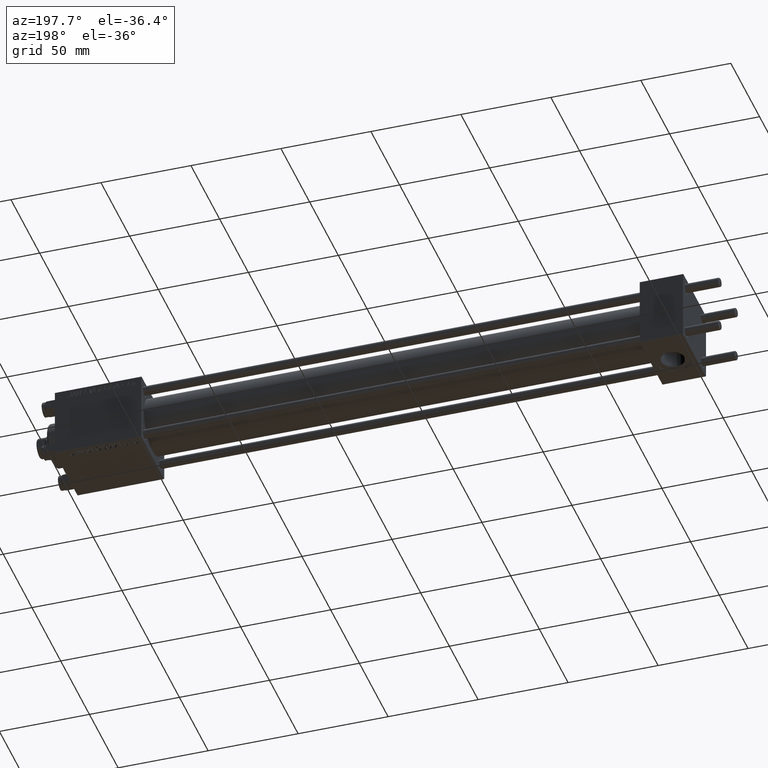
[diagram: clean part render]
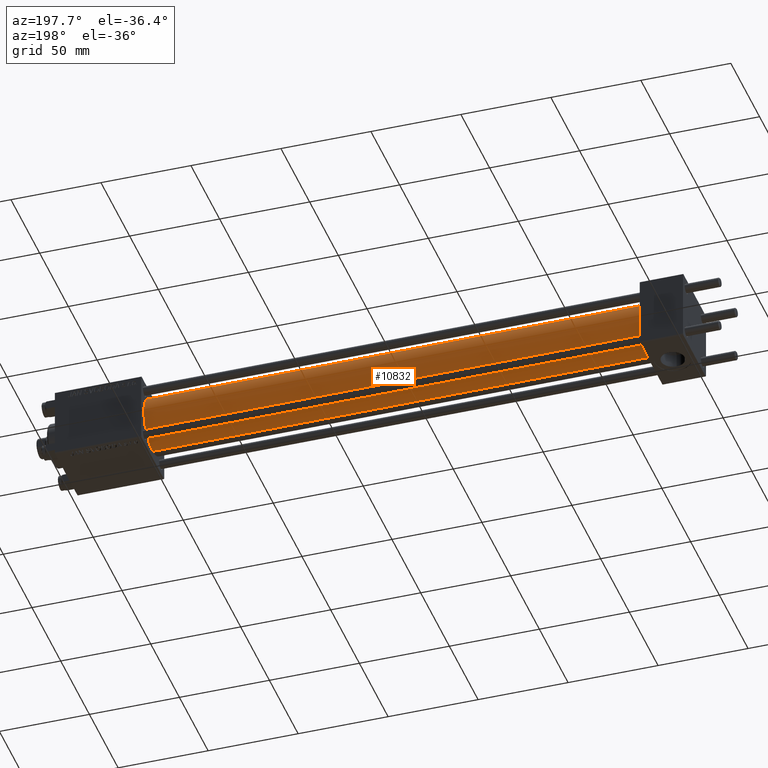
[diagram: same view with one face highlighted and labeled with its STEP entity id]
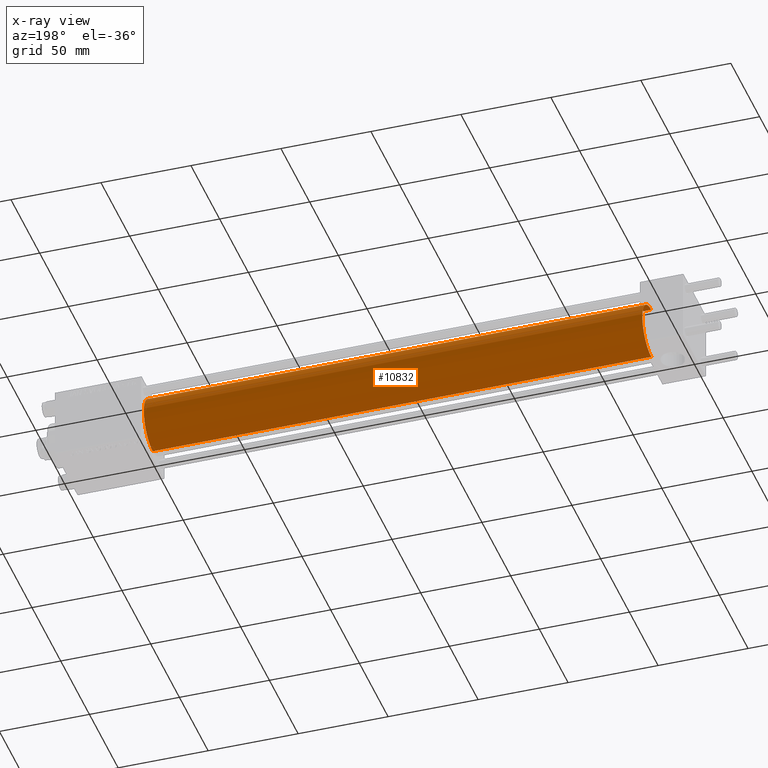
[diagram: x-ray of the same camera — body ghosted, the highlighted face saturated]
A machine part, auxiliary view. The second image highlights one B-rep face of the part: STEP entity #10832.
The next image is the same camera in x-ray: the body ghosted, the highlighted face saturated — about 0% of this face is hidden behind the body in this view.
In plain terms, the highlighted cylindrical surface (edge-blend (fillet) strip) has radius 15.5 mm, axis along (-1, -0, -0).
Its self-contained STEP definition (entity closure, byte-faithful):
#380 = AXIS2_PLACEMENT_3D ( 'NONE', #10806, #2510, #26151 ) ;
#2510 = DIRECTION ( 'NONE',  ( 1.000000000000000000, 0.000000000000000000, 0.000000000000000000 ) ) ;
#2615 = VERTEX_POINT ( 'NONE', #44015 ) ;
#2929 = CARTESIAN_POINT ( 'NONE',  ( 301.0000000000000568, 0.000000000000000000, 0.000000000000000000 ) ) ;
#3000 = CARTESIAN_POINT ( 'NONE',  ( 301.0000000000000568, 0.000000000000000000, 15.50000000000000000 ) ) ;
#4144 = ORIENTED_EDGE ( 'NONE', *, *, #30227, .F. ) ;
#5231 = ORIENTED_EDGE ( 'NONE', *, *, #30996, .F. ) ;
#5706 = ORIENTED_EDGE ( 'NONE', *, *, #40016, .T. ) ;
#6829 = CARTESIAN_POINT ( 'NONE',  ( 301.0000000000000568, 1.898202538678397557E-15, -15.50000000000000000 ) ) ;
#7076 = LINE ( 'NONE', #6829, #44860 ) ;
#7461 = DIRECTION ( 'NONE',  ( 0.000000000000000000, 0.000000000000000000, -1.000000000000000000 ) ) ;
#8009 = VERTEX_POINT ( 'NONE', #32710 ) ;
#8177 = VERTEX_POINT ( 'NONE', #34442 ) ;
#10795 = CIRCLE ( 'NONE', #22824, 15.50000000000000000 ) ;
#10806 = CARTESIAN_POINT ( 'NONE',  ( 24.00000000000002132, 0.000000000000000000, 0.000000000000000000 ) ) ;
#10832 = ADVANCED_FACE ( 'NONE', ( #47669 ), #12683, .T. ) ;
#12683 = CYLINDRICAL_SURFACE ( 'NONE', #13925, 15.50000000000000000 ) ;
#13925 = AXIS2_PLACEMENT_3D ( 'NONE', #44388, #40346, #28279 ) ;
#14116 = DIRECTION ( 'NONE',  ( -1.000000000000000000, -0.000000000000000000, -0.000000000000000000 ) ) ;
#19464 = CARTESIAN_POINT ( 'NONE',  ( 301.0000000000000568, 1.898202538678397557E-15, -15.50000000000000000 ) ) ;
#22824 = AXIS2_PLACEMENT_3D ( 'NONE', #2929, #41184, #7461 ) ;
#26151 = DIRECTION ( 'NONE',  ( 0.000000000000000000, 0.000000000000000000, 1.000000000000000000 ) ) ;
#26888 = VECTOR ( 'NONE', #33705, 1000.000000000000000 ) ;
#28279 = DIRECTION ( 'NONE',  ( 0.000000000000000000, 0.000000000000000000, 1.000000000000000000 ) ) ;
#30227 = EDGE_CURVE ( 'NONE', #35732, #8009, #10795, .T. ) ;
#30996 = EDGE_CURVE ( 'NONE', #8009, #2615, #40756, .T. ) ;
#31060 = EDGE_CURVE ( 'NONE', #8177, #2615, #40526, .T. ) ;
#32710 = CARTESIAN_POINT ( 'NONE',  ( 301.0000000000000568, 0.000000000000000000, 15.50000000000000000 ) ) ;
#33705 = DIRECTION ( 'NONE',  ( -1.000000000000000000, -0.000000000000000000, -0.000000000000000000 ) ) ;
#34442 = CARTESIAN_POINT ( 'NONE',  ( 24.00000000000002132, 1.898202538678397557E-15, -15.50000000000000000 ) ) ;
#35732 = VERTEX_POINT ( 'NONE', #19464 ) ;
#40016 = EDGE_CURVE ( 'NONE', #35732, #8177, #7076, .T. ) ;
#40346 = DIRECTION ( 'NONE',  ( -1.000000000000000000, -0.000000000000000000, -0.000000000000000000 ) ) ;
#40526 = CIRCLE ( 'NONE', #380, 15.50000000000000000 ) ;
#40756 = LINE ( 'NONE', #3000, #26888 ) ;
#41184 = DIRECTION ( 'NONE',  ( 1.000000000000000000, 0.000000000000000000, 0.000000000000000000 ) ) ;
#41551 = ORIENTED_EDGE ( 'NONE', *, *, #31060, .T. ) ;
#44015 = CARTESIAN_POINT ( 'NONE',  ( 24.00000000000002132, 0.000000000000000000, 15.50000000000000000 ) ) ;
#44388 = CARTESIAN_POINT ( 'NONE',  ( 301.0000000000000568, 0.000000000000000000, 0.000000000000000000 ) ) ;
#44860 = VECTOR ( 'NONE', #14116, 1000.000000000000000 ) ;
#47669 = FACE_OUTER_BOUND ( 'NONE', #47842, .T. ) ;
#47842 = EDGE_LOOP ( 'NONE', ( #4144, #5706, #41551, #5231 ) ) ;